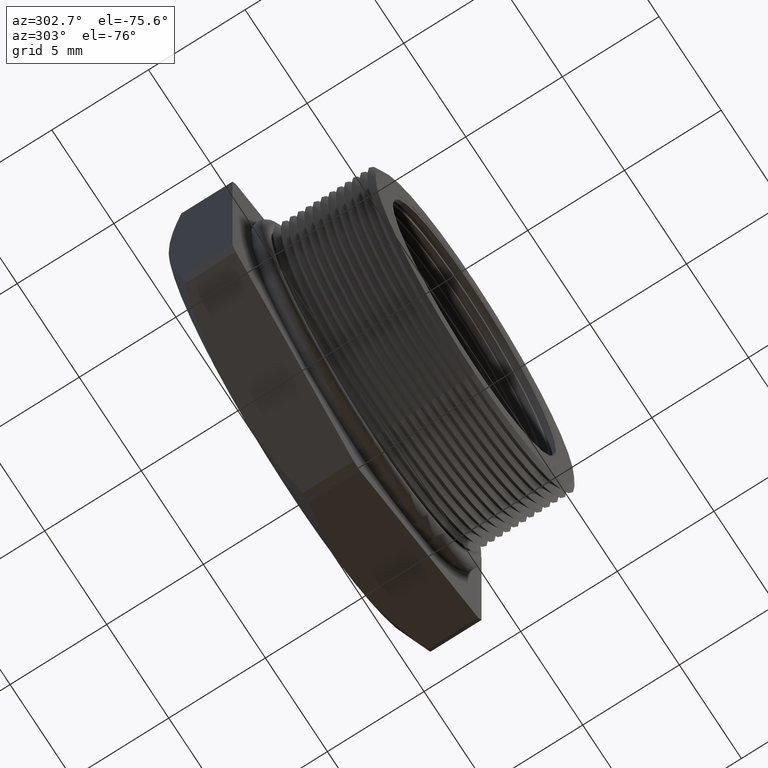
[diagram: clean part render]
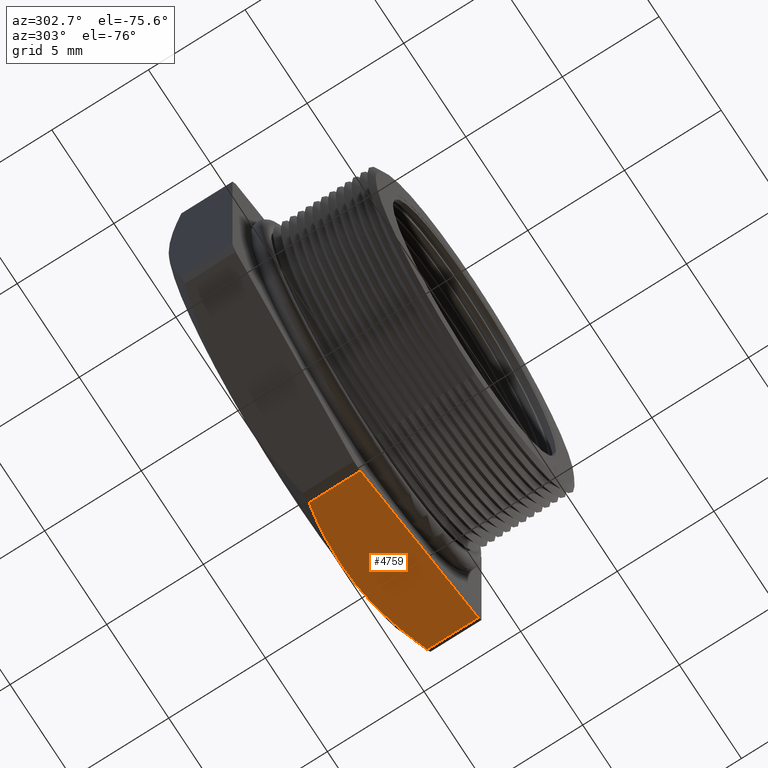
[diagram: same view with one face highlighted and labeled with its STEP entity id]
A machine part, auxiliary view. The second image highlights one B-rep face of the part: STEP entity #4759.
In plain terms, the highlighted planar face has unit normal (0.5, 0, -0.866).
Its self-contained STEP definition (entity closure, byte-faithful):
#1317 = CARTESIAN_POINT ( 'NONE',  ( 0.01026000026703700000, 0.2775548905829479700, -0.4501830987437449600 ) ) ;
#1318 = DIRECTION ( 'NONE',  ( -0.0000000000000000000, -1.000000000000000000, -0.0000000000000000000 ) ) ;
#1319 = VECTOR ( 'NONE', #1318, 39.37007874015748100 ) ;
#1320 = CARTESIAN_POINT ( 'NONE',  ( 0.01026000026703722700, 0.0000000000000000000, -0.4501830987437449000 ) ) ;
#1321 = LINE ( 'NONE', #1320, #1319 ) ;
#1348 = CARTESIAN_POINT ( 'NONE',  ( 0.3847399997329629100, 0.3817680770869766300, -0.2339769702459617900 ) ) ;
#1349 = CARTESIAN_POINT ( 'NONE',  ( 0.3847399997329629100, 0.2775548905829479700, -0.2339769702459617300 ) ) ;
#1350 = DIRECTION ( 'NONE',  ( 0.0000000000000000000, 1.000000000000000000, 0.0000000000000000000 ) ) ;
#1351 = VECTOR ( 'NONE', #1350, 39.37007874015748100 ) ;
#1352 = CARTESIAN_POINT ( 'NONE',  ( 0.3847399997329628000, 0.0000000000000000000, -0.2339769702459619500 ) ) ;
#1353 = LINE ( 'NONE', #1352, #1351 ) ;
#1447 = CARTESIAN_POINT ( 'NONE',  ( 0.1975000000000000100, 0.4075548905829479200, -0.3420800344948534100 ) ) ;
#1460 = CARTESIAN_POINT ( 'NONE',  ( 0.01026000026703719800, 0.3817680770869766900, -0.4501830987437449000 ) ) ;
#1521 = DIRECTION ( 'NONE',  ( 0.8660254037844386000, 0.0000000000000000000, 0.4999999999999998300 ) ) ;
#1522 = VECTOR ( 'NONE', #1521, 39.37007874015748900 ) ;
#1523 = CARTESIAN_POINT ( 'NONE',  ( 0.4337499999999999700, 0.2775548905829479700, -0.2056810333988042500 ) ) ;
#1524 = CARTESIAN_POINT ( 'NONE',  ( 0.3847399997329629100, 0.3817680770869766300, -0.2339769702459617900 ) ) ;
#1525 = CARTESIAN_POINT ( 'NONE',  ( 0.3538644116588920400, 0.3897502881590465000, -0.2518029993319145200 ) ) ;
#1526 = CARTESIAN_POINT ( 'NONE',  ( 0.3227431943461727700, 0.3962764420413619200, -0.2697708425249218900 ) ) ;
#1527 = CARTESIAN_POINT ( 'NONE',  ( 0.2599588776186194700, 0.4052207272773963300, -0.3060193846884615200 ) ) ;
#1528 = CARTESIAN_POINT ( 'NONE',  ( 0.2286719793528690600, 0.4075548905829479200, -0.3240828838243010600 ) ) ;
#1529 = CARTESIAN_POINT ( 'NONE',  ( 0.1975000000000000100, 0.4075548905829479200, -0.3420800344948534100 ) ) ;
#1530 = LINE ( 'NONE', #1523, #1522 ) ;
#1531 = B_SPLINE_CURVE_WITH_KNOTS ( 'NONE', 3,
 ( #1529, #1528, #1527, #1526, #1525, #1524 ),
 .UNSPECIFIED., .F., .F.,
 ( 4, 2, 4 ),
 ( 0.005520192186429568100, 0.008258536476824113500, 0.01099688076721865700 ),
 .UNSPECIFIED. ) ;
#1532 = CARTESIAN_POINT ( 'NONE',  ( 0.1975000000000000100, 0.4075548905829479200, -0.3420800344948534100 ) ) ;
#1533 = CARTESIAN_POINT ( 'NONE',  ( 0.1660817377447930100, 0.4075548905829479200, -0.3602193766653673000 ) ) ;
#1534 = CARTESIAN_POINT ( 'NONE',  ( 0.1347800776656142000, 0.4051865378565922500, -0.3782913985381633500 ) ) ;
#1535 = CARTESIAN_POINT ( 'NONE',  ( 0.07238150130182612100, 0.3962912005447678500, -0.4143172333988460200 ) ) ;
#1536 = CARTESIAN_POINT ( 'NONE',  ( 0.04128338948296790500, 0.3897884989263424300, -0.4322717366287527300 ) ) ;
#1537 = CARTESIAN_POINT ( 'NONE',  ( 0.01026000026703719800, 0.3817680770869766900, -0.4501830987437449000 ) ) ;
#1538 = B_SPLINE_CURVE_WITH_KNOTS ( 'NONE', 3,
 ( #1537, #1536, #1535, #1534, #1533, #1532 ),
 .UNSPECIFIED., .F., .F.,
 ( 4, 2, 4 ),
 ( 2.335025902646719000E-007, 0.002760212844509916200, 0.005520192186429568100 ),
 .UNSPECIFIED. ) ;
#1618 = DIRECTION ( 'NONE',  ( -0.8660254037844386000, 0.0000000000000000000, -0.4999999999999998300 ) ) ;
#1619 = DIRECTION ( 'NONE',  ( 0.4999999999999998900, 0.0000000000000000000, -0.8660254037844387100 ) ) ;
#1620 = AXIS2_PLACEMENT_3D ( 'NONE', #1621, #1619, #1618 ) ;
#1621 = CARTESIAN_POINT ( 'NONE',  ( 1.446412442642387900E-016, 0.4075548905829479700, -0.4561067126598043500 ) ) ;
#1622 = PLANE ( 'NONE',  #1620 ) ;
#1623 = FACE_OUTER_BOUND ( 'NONE', #4760, .T. ) ;
#4620 = EDGE_CURVE ( 'NONE', #4702, #4621, #1321, .T. ) ;
#4621 = VERTEX_POINT ( 'NONE', #1317 ) ;
#4632 = EDGE_CURVE ( 'NONE', #4633, #4634, #1353, .T. ) ;
#4633 = VERTEX_POINT ( 'NONE', #1349 ) ;
#4634 = VERTEX_POINT ( 'NONE', #1348 ) ;
#4678 = VERTEX_POINT ( 'NONE', #1447 ) ;
#4702 = VERTEX_POINT ( 'NONE', #1460 ) ;
#4715 = ORIENTED_EDGE ( 'NONE', *, *, #4620, .F. ) ;
#4716 = ORIENTED_EDGE ( 'NONE', *, *, #4717, .T. ) ;
#4717 = EDGE_CURVE ( 'NONE', #4702, #4678, #1538, .T. ) ;
#4718 = ORIENTED_EDGE ( 'NONE', *, *, #4719, .T. ) ;
#4719 = EDGE_CURVE ( 'NONE', #4678, #4634, #1531, .T. ) ;
#4720 = ORIENTED_EDGE ( 'NONE', *, *, #4632, .F. ) ;
#4721 = ORIENTED_EDGE ( 'NONE', *, *, #4722, .F. ) ;
#4722 = EDGE_CURVE ( 'NONE', #4621, #4633, #1530, .T. ) ;
#4759 = ADVANCED_FACE ( 'NONE', ( #1623 ), #1622, .T. ) ;
#4760 = EDGE_LOOP ( 'NONE', ( #4715, #4716, #4718, #4720, #4721 ) ) ;